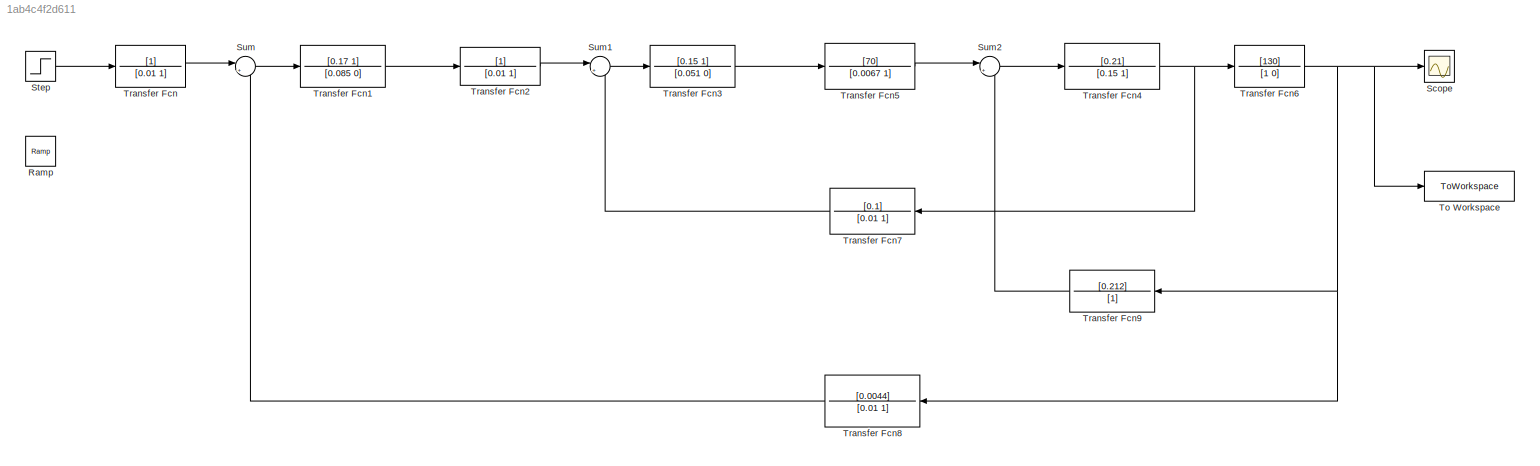
MODEL slx_1ab4c4f2d611
KIND model
CONFIG AbsTol = auto
CONFIG EnableMultiTasking = off
CONFIG FixedStep = auto
CONFIG MaxStep = auto
CONFIG MinStep = auto
CONFIG RelTol = 1e-3
CONFIG SampleTimeConstraint = Unconstrained
CONFIG Solver = VariableStepAuto
CONFIG SolverName = VariableStepAuto
CONFIG StartTime = 0.0
CONFIG StopTime = 10.0
BLOCK [Reference] Ramp  REF=simulink/Sources/Ramp
  Ports = [0, 1]
  SourceBlock = simulink/Sources/Ramp
  SourceProductBaseCode = SL
  SourceType = Ramp
BLOCK [Scope] Scope
  Floating = off
  NumInputPorts = 1
  Ports = [1]
  ScopeSpecificationString = Simulink.scopes.TimeScopeBlockCfg('CurrentConfiguration', extmgr.ConfigurationSet(extmgr.Configuration('Core','General UI',true),extmgr.Configuration('Core','Source UI',true),extmgr.Configuration('Sources','WiredSimulink',true),extmgr.Configuration('Visuals','Time Domain',true,'SerializedDisplays',{struct('MinYLimReal','-41.01806','MaxYLimReal','369.16255','YLabelReal','','MinYLimMag','0.00000','M...<+1343ch>
BLOCK [Step] Step
  SampleTime = 0
  Time = 0
BLOCK [Sum] Sum
  Inputs = |+-
  Ports = [2, 1]
BLOCK [Sum] Sum1
  Inputs = |+-
  Ports = [2, 1]
BLOCK [Sum] Sum2
  Inputs = |+-
  Ports = [2, 1]
BLOCK [ToWorkspace] To Workspace
  FixptAsFi = on
  MaxDataPoints = inf
  Ports = [1]
  SampleTime = 0.1
  VariableName = step_2
BLOCK [TransferFcn] Transfer Fcn
  Denominator = [0.01 1]
BLOCK [TransferFcn] Transfer Fcn1
  Denominator = [0.085 0]
  Numerator = [0.17 1]
BLOCK [TransferFcn] Transfer Fcn2
  Denominator = [0.01 1]
BLOCK [TransferFcn] Transfer Fcn3
  Denominator = [0.051 0]
  Numerator = [0.15 1]
BLOCK [TransferFcn] Transfer Fcn4
  Denominator = [0.15 1]
  Numerator = [0.21]
BLOCK [TransferFcn] Transfer Fcn5
  Denominator = [0.0067 1]
  Numerator = [70]
BLOCK [TransferFcn] Transfer Fcn6
  Denominator = [1 0]
  Numerator = [130]
BLOCK [TransferFcn] Transfer Fcn7
  Denominator = [0.01 1]
  Numerator = [0.1]
BLOCK [TransferFcn] Transfer Fcn8
  Denominator = [0.01 1]
  Numerator = [0.0044]
BLOCK [TransferFcn] Transfer Fcn9
  Denominator = [1]
  Numerator = [0.212]
LINE Step:1 -> Transfer Fcn:1
LINE Sum1:1 -> Transfer Fcn3:1
LINE Sum2:1 -> Transfer Fcn4:1
LINE Sum:1 -> Transfer Fcn1:1
LINE Transfer Fcn1:1 -> Transfer Fcn2:1
LINE Transfer Fcn2:1 -> Sum1:1
LINE Transfer Fcn3:1 -> Transfer Fcn5:1
NET Transfer Fcn4:1 -> Transfer Fcn6:1, Transfer Fcn7:1
LINE Transfer Fcn5:1 -> Sum2:1
NET Transfer Fcn6:1 -> Scope:1, To Workspace:1, Transfer Fcn8:1, Transfer Fcn9:1
LINE Transfer Fcn7:1 -> Sum1:2
LINE Transfer Fcn8:1 -> Sum:2
LINE Transfer Fcn9:1 -> Sum2:2
LINE Transfer Fcn:1 -> Sum:1
note: NET lines group one-source signal fan-out (src -> all destinations, sorted); 1:1 wires keep LINE
